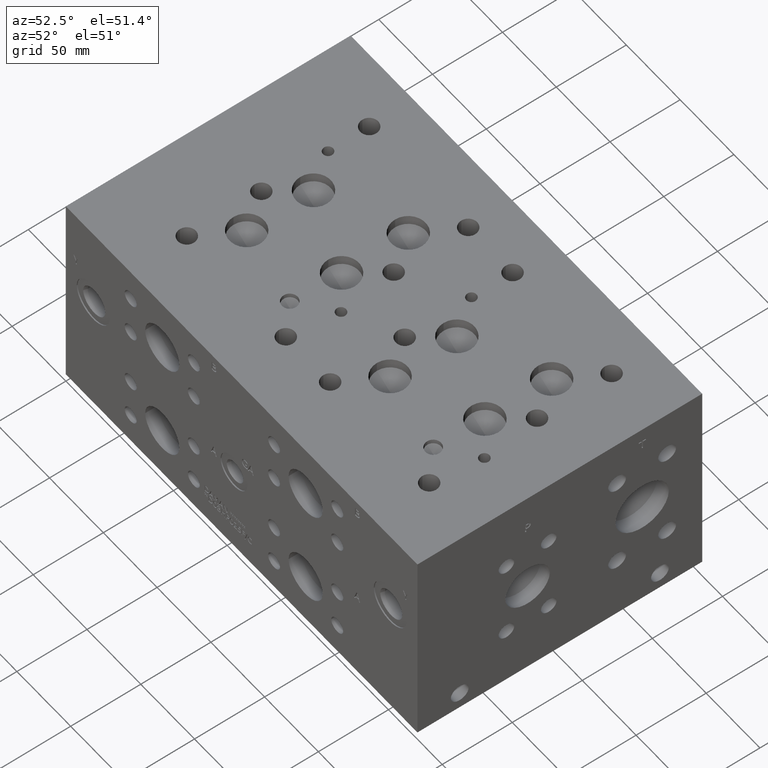
[diagram: clean part render]
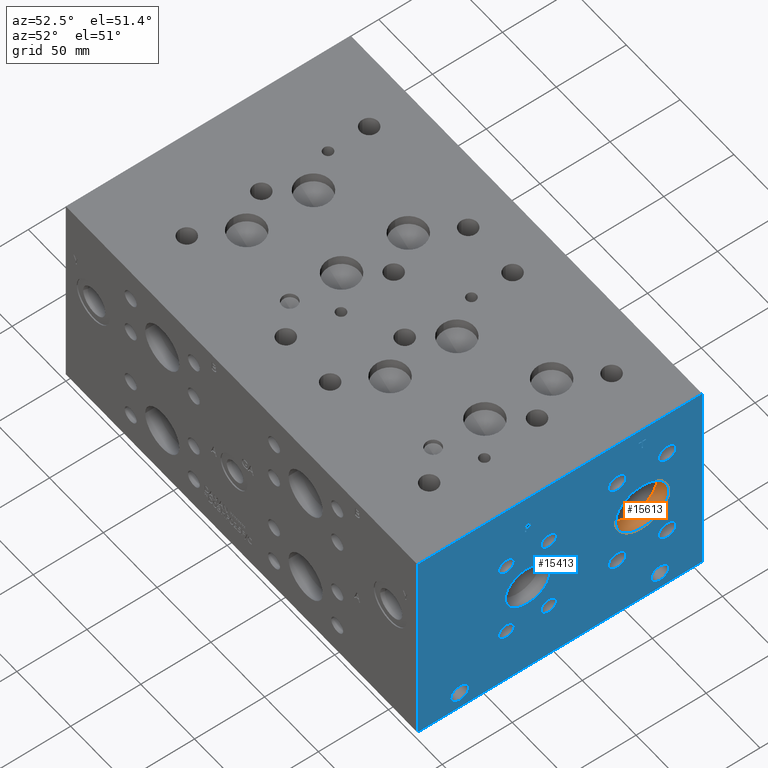
[diagram: same view with the hole feature highlighted: cylindrical wall and planar end face, labeled with their STEP entity ids]
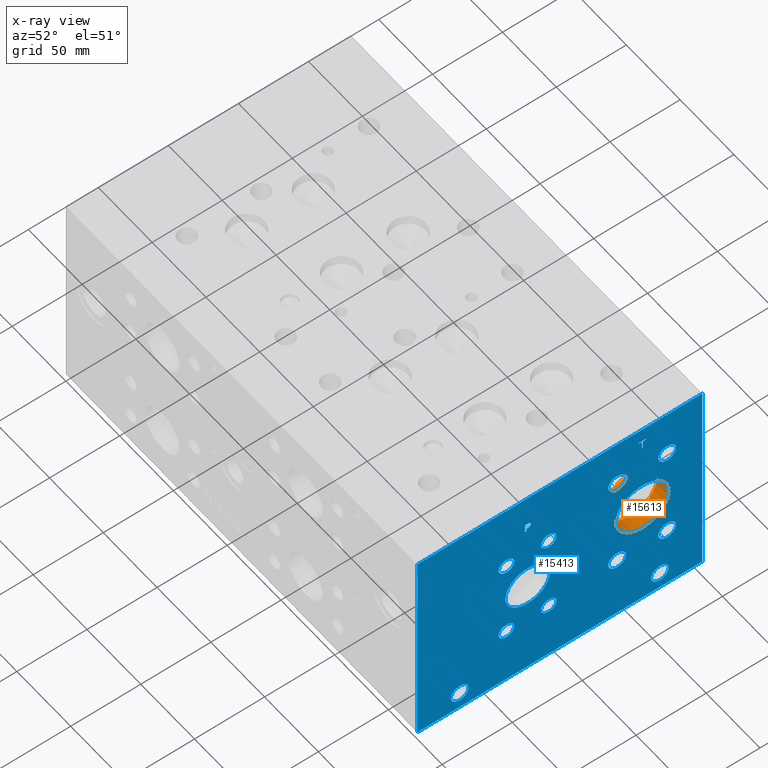
[diagram: x-ray of the same camera — body ghosted, the hole faces saturated]
A machine part, auxiliary view. The highlighted faces form one hole feature of diameter 38.1 mm: the cylindrical wall (entity #15613, orange) and its adjacent planar end face (entity #15413, blue) — they share a circular edge in the B-rep.
The next image is the same camera in x-ray (body ghosted, the hole faces saturated) — the bore reads through the body.
Wall:
#180=CYLINDRICAL_SURFACE('',#16595,19.05);
#287=CIRCLE('',#16133,19.05);
#288=CIRCLE('',#16134,19.05);
#556=CIRCLE('',#16593,19.05);
#557=CIRCLE('',#16594,19.05);
#2122=FACE_OUTER_BOUND('',#3071,.T.);
#3071=EDGE_LOOP('',(#13340,#13341,#13342,#13343,#13344,#13345));
#4482=LINE('',#26687,#5816);
#5816=VECTOR('',#19835,19.05);
#6855=VERTEX_POINT('',#25428);
#6856=VERTEX_POINT('',#25429);
#7225=VERTEX_POINT('',#26680);
#7226=VERTEX_POINT('',#26681);
#8842=EDGE_CURVE('',#6855,#6856,#287,.T.);
#8843=EDGE_CURVE('',#6856,#6855,#288,.T.);
#9339=EDGE_CURVE('',#7225,#7226,#556,.T.);
#9341=EDGE_CURVE('',#7226,#7225,#557,.T.);
#9342=EDGE_CURVE('',#6856,#7226,#4482,.T.);
#13340=ORIENTED_EDGE('',*,*,#8842,.F.);
#13341=ORIENTED_EDGE('',*,*,#8843,.F.);
#13342=ORIENTED_EDGE('',*,*,#9342,.T.);
#13343=ORIENTED_EDGE('',*,*,#9339,.F.);
#13344=ORIENTED_EDGE('',*,*,#9341,.F.);
#13345=ORIENTED_EDGE('',*,*,#9342,.F.);
#15613=ADVANCED_FACE('',(#2122),#180,.F.);
#16133=AXIS2_PLACEMENT_3D('',#25430,#18698,#18699);
#16134=AXIS2_PLACEMENT_3D('',#25431,#18700,#18701);
#16593=AXIS2_PLACEMENT_3D('',#26682,#19828,#19829);
#16594=AXIS2_PLACEMENT_3D('',#26685,#19831,#19832);
#16595=AXIS2_PLACEMENT_3D('',#26686,#19833,#19834);
#18698=DIRECTION('center_axis',(-1.,0.,0.));
#18699=DIRECTION('ref_axis',(0.,1.,0.));
#18700=DIRECTION('center_axis',(-1.,0.,0.));
#18701=DIRECTION('ref_axis',(0.,1.,0.));
#19828=DIRECTION('center_axis',(1.,0.,0.));
#19829=DIRECTION('ref_axis',(0.,1.,0.));
#19831=DIRECTION('center_axis',(1.,0.,0.));
#19832=DIRECTION('ref_axis',(0.,1.,0.));
#19833=DIRECTION('center_axis',(1.,0.,0.));
#19834=DIRECTION('ref_axis',(0.,1.,0.));
#19835=DIRECTION('',(-1.,0.,0.));
#25428=CARTESIAN_POINT('',(327.025,179.4002,82.55));
#25429=CARTESIAN_POINT('',(327.025,141.3002,82.55));
#25430=CARTESIAN_POINT('Origin',(327.025,160.3502,82.55));
#25431=CARTESIAN_POINT('Origin',(327.025,160.3502,82.55));
#26680=CARTESIAN_POINT('',(316.02648,179.4002,82.55));
#26681=CARTESIAN_POINT('',(316.02648,141.3002,82.55));
#26682=CARTESIAN_POINT('Origin',(316.02648,160.3502,82.55));
#26685=CARTESIAN_POINT('Origin',(316.02648,160.3502,82.55));
#26686=CARTESIAN_POINT('Origin',(321.52574,160.3502,82.55));
#26687=CARTESIAN_POINT('',(321.52574,141.3002,82.55));
End face:
#287=CIRCLE('',#16133,19.05);
#288=CIRCLE('',#16134,19.05);
#289=CIRCLE('',#16135,6.35);
#290=CIRCLE('',#16136,6.35);
#291=CIRCLE('',#16137,6.35);
#292=CIRCLE('',#16138,6.35);
#293=CIRCLE('',#16139,6.35);
#294=CIRCLE('',#16140,6.35);
#295=CIRCLE('',#16141,6.35);
#296=CIRCLE('',#16142,6.35);
#297=CIRCLE('',#16143,15.875);
#298=CIRCLE('',#16144,15.875);
#299=CIRCLE('',#16145,5.5626);
#300=CIRCLE('',#16146,5.5626);
#301=CIRCLE('',#16147,5.5626);
#302=CIRCLE('',#16148,5.5626);
#303=CIRCLE('',#16149,5.5626);
#304=CIRCLE('',#16150,5.5626);
#305=CIRCLE('',#16151,5.5626);
#306=CIRCLE('',#16152,5.5626);
#307=CIRCLE('',#16153,6.35);
#308=CIRCLE('',#16154,6.35);
#309=CIRCLE('',#16155,6.35);
#310=CIRCLE('',#16156,6.35);
#821=FACE_BOUND('',#2808,.T.);
#822=FACE_BOUND('',#2809,.T.);
#823=FACE_BOUND('',#2810,.T.);
#824=FACE_BOUND('',#2811,.T.);
#825=FACE_BOUND('',#2812,.T.);
#826=FACE_BOUND('',#2813,.T.);
#827=FACE_BOUND('',#2814,.T.);
#828=FACE_BOUND('',#2815,.T.);
#829=FACE_BOUND('',#2816,.T.);
#830=FACE_BOUND('',#2817,.T.);
#831=FACE_BOUND('',#2818,.T.);
#832=FACE_BOUND('',#2819,.T.);
#833=FACE_BOUND('',#2820,.T.);
#834=FACE_BOUND('',#2821,.T.);
#1242=B_SPLINE_CURVE_WITH_KNOTS('',2,(#25325,#25326,#25327,#25328),
 .UNSPECIFIED.,.F.,.F.,(3,1,3),(0.,1.,2.),.UNSPECIFIED.);
#1244=B_SPLINE_CURVE_WITH_KNOTS('',2,(#25346,#25347,#25348,#25349),
 .UNSPECIFIED.,.F.,.F.,(3,1,3),(0.,1.,2.),.UNSPECIFIED.);
#1246=B_SPLINE_CURVE_WITH_KNOTS('',2,(#25395,#25396,#25397,#25398),
 .UNSPECIFIED.,.F.,.F.,(3,1,3),(0.,1.,2.),.UNSPECIFIED.);
#1248=B_SPLINE_CURVE_WITH_KNOTS('',2,(#25413,#25414,#25415,#25416),
 .UNSPECIFIED.,.F.,.F.,(3,1,3),(0.,1.,2.),.UNSPECIFIED.);
#1922=FACE_OUTER_BOUND('',#2807,.T.);
#2807=EDGE_LOOP('',(#12322,#12323,#12324,#12325));
#2808=EDGE_LOOP('',(#12326,#12327));
#2809=EDGE_LOOP('',(#12328,#12329));
#2810=EDGE_LOOP('',(#12330,#12331));
#2811=EDGE_LOOP('',(#12332,#12333));
#2812=EDGE_LOOP('',(#12334,#12335));
#2813=EDGE_LOOP('',(#12336,#12337));
#2814=EDGE_LOOP('',(#12338,#12339));
#2815=EDGE_LOOP('',(#12340,#12341));
#2816=EDGE_LOOP('',(#12342,#12343));
#2817=EDGE_LOOP('',(#12344,#12345));
#2818=EDGE_LOOP('',(#12346,#12347));
#2819=EDGE_LOOP('',(#12348,#12349));
#2820=EDGE_LOOP('',(#12350,#12351,#12352,#12353,#12354,#12355,#12356,#12357));
#2821=EDGE_LOOP('',(#12358,#12359,#12360,#12361,#12362,#12363,#12364,#12365,
#12366));
#3580=LINE('',#22937,#4914);
#4252=LINE('',#25358,#5586);
#4255=LINE('',#25364,#5589);
#4258=LINE('',#25370,#5592);
#4261=LINE('',#25376,#5595);
#4264=LINE('',#25382,#5598);
#4268=LINE('',#25424,#5602);
#4269=LINE('',#25426,#5603);
#4270=LINE('',#25427,#5604);
#4271=LINE('',#25478,#5605);
#4272=LINE('',#25480,#5606);
#4273=LINE('',#25482,#5607);
#4274=LINE('',#25484,#5608);
#4275=LINE('',#25486,#5609);
#4276=LINE('',#25488,#5610);
#4277=LINE('',#25490,#5611);
#4278=LINE('',#25491,#5612);
#4914=VECTOR('',#17429,10.);
#5586=VECTOR('',#18667,10.);
#5589=VECTOR('',#18672,10.);
#5592=VECTOR('',#18677,10.);
#5595=VECTOR('',#18682,10.);
#5598=VECTOR('',#18687,10.);
#5602=VECTOR('',#18695,10.);
#5603=VECTOR('',#18696,10.);
#5604=VECTOR('',#18697,10.);
#5605=VECTOR('',#18746,10.);
#5606=VECTOR('',#18747,10.);
#5607=VECTOR('',#18748,10.);
#5608=VECTOR('',#18749,10.);
#5609=VECTOR('',#18750,10.);
#5610=VECTOR('',#18751,10.);
#5611=VECTOR('',#18752,10.);
#5612=VECTOR('',#18753,10.);
#6270=VERTEX_POINT('',#22934);
#6271=VERTEX_POINT('',#22936);
#6835=VERTEX_POINT('',#25323);
#6836=VERTEX_POINT('',#25324);
#6839=VERTEX_POINT('',#25345);
#6841=VERTEX_POINT('',#25357);
#6843=VERTEX_POINT('',#25363);
#6845=VERTEX_POINT('',#25369);
#6847=VERTEX_POINT('',#25375);
#6849=VERTEX_POINT('',#25381);
#6851=VERTEX_POINT('',#25394);
#6853=VERTEX_POINT('',#25423);
#6854=VERTEX_POINT('',#25425);
#6855=VERTEX_POINT('',#25428);
#6856=VERTEX_POINT('',#25429);
#6857=VERTEX_POINT('',#25432);
#6858=VERTEX_POINT('',#25433);
#6859=VERTEX_POINT('',#25436);
#6860=VERTEX_POINT('',#25437);
#6861=VERTEX_POINT('',#25440);
#6862=VERTEX_POINT('',#25441);
#6863=VERTEX_POINT('',#25444);
#6864=VERTEX_POINT('',#25445);
#6865=VERTEX_POINT('',#25448);
#6866=VERTEX_POINT('',#25449);
#6867=VERTEX_POINT('',#25452);
#6868=VERTEX_POINT('',#25453);
#6869=VERTEX_POINT('',#25456);
#6870=VERTEX_POINT('',#25457);
#6871=VERTEX_POINT('',#25460);
#6872=VERTEX_POINT('',#25461);
#6873=VERTEX_POINT('',#25464);
#6874=VERTEX_POINT('',#25465);
#6875=VERTEX_POINT('',#25468);
#6876=VERTEX_POINT('',#25469);
#6877=VERTEX_POINT('',#25472);
#6878=VERTEX_POINT('',#25473);
#6879=VERTEX_POINT('',#25476);
#6880=VERTEX_POINT('',#25477);
#6881=VERTEX_POINT('',#25479);
#6882=VERTEX_POINT('',#25481);
#6883=VERTEX_POINT('',#25483);
#6884=VERTEX_POINT('',#25485);
#6885=VERTEX_POINT('',#25487);
#6886=VERTEX_POINT('',#25489);
#7989=EDGE_CURVE('',#6270,#6271,#3580,.T.);
#8812=EDGE_CURVE('',#6835,#6836,#1242,.T.);
#8816=EDGE_CURVE('',#6839,#6835,#1244,.T.);
#8819=EDGE_CURVE('',#6841,#6839,#4252,.T.);
#8822=EDGE_CURVE('',#6843,#6841,#4255,.T.);
#8825=EDGE_CURVE('',#6845,#6843,#4258,.T.);
#8828=EDGE_CURVE('',#6847,#6845,#4261,.T.);
#8831=EDGE_CURVE('',#6849,#6847,#4264,.T.);
#8834=EDGE_CURVE('',#6851,#6849,#1246,.T.);
#8837=EDGE_CURVE('',#6836,#6851,#1248,.T.);
#8839=EDGE_CURVE('',#6270,#6853,#4268,.T.);
#8840=EDGE_CURVE('',#6853,#6854,#4269,.T.);
#8841=EDGE_CURVE('',#6271,#6854,#4270,.T.);
#8842=EDGE_CURVE('',#6855,#6856,#287,.T.);
#8843=EDGE_CURVE('',#6856,#6855,#288,.T.);
#8844=EDGE_CURVE('',#6857,#6858,#289,.T.);
#8845=EDGE_CURVE('',#6858,#6857,#290,.T.);
#8846=EDGE_CURVE('',#6859,#6860,#291,.T.);
#8847=EDGE_CURVE('',#6860,#6859,#292,.T.);
#8848=EDGE_CURVE('',#6861,#6862,#293,.T.);
#8849=EDGE_CURVE('',#6862,#6861,#294,.T.);
#8850=EDGE_CURVE('',#6863,#6864,#295,.T.);
#8851=EDGE_CURVE('',#6864,#6863,#296,.T.);
#8852=EDGE_CURVE('',#6865,#6866,#297,.T.);
#8853=EDGE_CURVE('',#6866,#6865,#298,.T.);
#8854=EDGE_CURVE('',#6867,#6868,#299,.T.);
#8855=EDGE_CURVE('',#6868,#6867,#300,.T.);
#8856=EDGE_CURVE('',#6869,#6870,#301,.T.);
#8857=EDGE_CURVE('',#6870,#6869,#302,.T.);
#8858=EDGE_CURVE('',#6871,#6872,#303,.T.);
#8859=EDGE_CURVE('',#6872,#6871,#304,.T.);
#8860=EDGE_CURVE('',#6873,#6874,#305,.T.);
#8861=EDGE_CURVE('',#6874,#6873,#306,.T.);
#8862=EDGE_CURVE('',#6875,#6876,#307,.T.);
#8863=EDGE_CURVE('',#6876,#6875,#308,.T.);
#8864=EDGE_CURVE('',#6877,#6878,#309,.T.);
#8865=EDGE_CURVE('',#6878,#6877,#310,.T.);
#8866=EDGE_CURVE('',#6879,#6880,#4271,.T.);
#8867=EDGE_CURVE('',#6880,#6881,#4272,.T.);
#8868=EDGE_CURVE('',#6881,#6882,#4273,.T.);
#8869=EDGE_CURVE('',#6882,#6883,#4274,.T.);
#8870=EDGE_CURVE('',#6883,#6884,#4275,.T.);
#8871=EDGE_CURVE('',#6884,#6885,#4276,.T.);
#8872=EDGE_CURVE('',#6885,#6886,#4277,.T.);
#8873=EDGE_CURVE('',#6886,#6879,#4278,.T.);
#12322=ORIENTED_EDGE('',*,*,#8839,.T.);
#12323=ORIENTED_EDGE('',*,*,#8840,.T.);
#12324=ORIENTED_EDGE('',*,*,#8841,.F.);
#12325=ORIENTED_EDGE('',*,*,#7989,.F.);
#12326=ORIENTED_EDGE('',*,*,#8842,.T.);
#12327=ORIENTED_EDGE('',*,*,#8843,.T.);
#12328=ORIENTED_EDGE('',*,*,#8844,.T.);
#12329=ORIENTED_EDGE('',*,*,#8845,.T.);
#12330=ORIENTED_EDGE('',*,*,#8846,.T.);
#12331=ORIENTED_EDGE('',*,*,#8847,.T.);
#12332=ORIENTED_EDGE('',*,*,#8848,.T.);
#12333=ORIENTED_EDGE('',*,*,#8849,.T.);
#12334=ORIENTED_EDGE('',*,*,#8850,.T.);
#12335=ORIENTED_EDGE('',*,*,#8851,.T.);
#12336=ORIENTED_EDGE('',*,*,#8852,.T.);
#12337=ORIENTED_EDGE('',*,*,#8853,.T.);
#12338=ORIENTED_EDGE('',*,*,#8854,.T.);
#12339=ORIENTED_EDGE('',*,*,#8855,.T.);
#12340=ORIENTED_EDGE('',*,*,#8856,.T.);
#12341=ORIENTED_EDGE('',*,*,#8857,.T.);
#12342=ORIENTED_EDGE('',*,*,#8858,.T.);
#12343=ORIENTED_EDGE('',*,*,#8859,.T.);
#12344=ORIENTED_EDGE('',*,*,#8860,.T.);
#12345=ORIENTED_EDGE('',*,*,#8861,.T.);
#12346=ORIENTED_EDGE('',*,*,#8862,.T.);
#12347=ORIENTED_EDGE('',*,*,#8863,.T.);
#12348=ORIENTED_EDGE('',*,*,#8864,.T.);
#12349=ORIENTED_EDGE('',*,*,#8865,.T.);
#12350=ORIENTED_EDGE('',*,*,#8866,.T.);
#12351=ORIENTED_EDGE('',*,*,#8867,.T.);
#12352=ORIENTED_EDGE('',*,*,#8868,.T.);
#12353=ORIENTED_EDGE('',*,*,#8869,.T.);
#12354=ORIENTED_EDGE('',*,*,#8870,.T.);
#12355=ORIENTED_EDGE('',*,*,#8871,.T.);
#12356=ORIENTED_EDGE('',*,*,#8872,.T.);
#12357=ORIENTED_EDGE('',*,*,#8873,.T.);
#12358=ORIENTED_EDGE('',*,*,#8812,.T.);
#12359=ORIENTED_EDGE('',*,*,#8837,.T.);
#12360=ORIENTED_EDGE('',*,*,#8834,.T.);
#12361=ORIENTED_EDGE('',*,*,#8831,.T.);
#12362=ORIENTED_EDGE('',*,*,#8828,.T.);
#12363=ORIENTED_EDGE('',*,*,#8825,.T.);
#12364=ORIENTED_EDGE('',*,*,#8822,.T.);
#12365=ORIENTED_EDGE('',*,*,#8819,.T.);
#12366=ORIENTED_EDGE('',*,*,#8816,.T.);
#14323=PLANE('',#16132);
#15413=ADVANCED_FACE('',(#1922,#821,#822,#823,#824,#825,#826,#827,#828,
#829,#830,#831,#832,#833,#834),#14323,.T.);
#16132=AXIS2_PLACEMENT_3D('',#25422,#18693,#18694);
#16133=AXIS2_PLACEMENT_3D('',#25430,#18698,#18699);
#16134=AXIS2_PLACEMENT_3D('',#25431,#18700,#18701);
#16135=AXIS2_PLACEMENT_3D('',#25434,#18702,#18703);
#16136=AXIS2_PLACEMENT_3D('',#25435,#18704,#18705);
#16137=AXIS2_PLACEMENT_3D('',#25438,#18706,#18707);
#16138=AXIS2_PLACEMENT_3D('',#25439,#18708,#18709);
#16139=AXIS2_PLACEMENT_3D('',#25442,#18710,#18711);
#16140=AXIS2_PLACEMENT_3D('',#25443,#18712,#18713);
#16141=AXIS2_PLACEMENT_3D('',#25446,#18714,#18715);
#16142=AXIS2_PLACEMENT_3D('',#25447,#18716,#18717);
#16143=AXIS2_PLACEMENT_3D('',#25450,#18718,#18719);
#16144=AXIS2_PLACEMENT_3D('',#25451,#18720,#18721);
#16145=AXIS2_PLACEMENT_3D('',#25454,#18722,#18723);
#16146=AXIS2_PLACEMENT_3D('',#25455,#18724,#18725);
#16147=AXIS2_PLACEMENT_3D('',#25458,#18726,#18727);
#16148=AXIS2_PLACEMENT_3D('',#25459,#18728,#18729);
#16149=AXIS2_PLACEMENT_3D('',#25462,#18730,#18731);
#16150=AXIS2_PLACEMENT_3D('',#25463,#18732,#18733);
#16151=AXIS2_PLACEMENT_3D('',#25466,#18734,#18735);
#16152=AXIS2_PLACEMENT_3D('',#25467,#18736,#18737);
#16153=AXIS2_PLACEMENT_3D('',#25470,#18738,#18739);
#16154=AXIS2_PLACEMENT_3D('',#25471,#18740,#18741);
#16155=AXIS2_PLACEMENT_3D('',#25474,#18742,#18743);
#16156=AXIS2_PLACEMENT_3D('',#25475,#18744,#18745);
#17429=DIRECTION('',(0.,0.,1.));
#18667=DIRECTION('',(0.,1.,0.));
#18672=DIRECTION('',(0.,0.,1.));
#18677=DIRECTION('',(0.,-1.,0.));
#18682=DIRECTION('',(0.,0.,-1.));
#18687=DIRECTION('',(0.,-1.,0.));
#18693=DIRECTION('center_axis',(1.,0.,0.));
#18694=DIRECTION('ref_axis',(0.,1.,0.));
#18695=DIRECTION('',(0.,1.,0.));
#18696=DIRECTION('',(0.,0.,1.));
#18697=DIRECTION('',(0.,1.,0.));
#18698=DIRECTION('center_axis',(-1.,0.,0.));
#18699=DIRECTION('ref_axis',(0.,1.,0.));
#18700=DIRECTION('center_axis',(-1.,0.,0.));
#18701=DIRECTION('ref_axis',(0.,1.,0.));
#18702=DIRECTION('center_axis',(-1.,0.,0.));
#18703=DIRECTION('ref_axis',(0.,1.,0.));
#18704=DIRECTION('center_axis',(-1.,0.,0.));
#18705=DIRECTION('ref_axis',(0.,1.,0.));
#18706=DIRECTION('center_axis',(-1.,0.,0.));
#18707=DIRECTION('ref_axis',(0.,1.,0.));
#18708=DIRECTION('center_axis',(-1.,0.,0.));
#18709=DIRECTION('ref_axis',(0.,1.,0.));
#18710=DIRECTION('center_axis',(-1.,0.,0.));
#18711=DIRECTION('ref_axis',(0.,1.,0.));
#18712=DIRECTION('center_axis',(-1.,0.,0.));
#18713=DIRECTION('ref_axis',(0.,1.,0.));
#18714=DIRECTION('center_axis',(-1.,0.,0.));
#18715=DIRECTION('ref_axis',(0.,1.,0.));
#18716=DIRECTION('center_axis',(-1.,0.,0.));
#18717=DIRECTION('ref_axis',(0.,1.,0.));
#18718=DIRECTION('center_axis',(-1.,0.,0.));
#18719=DIRECTION('ref_axis',(0.,1.,0.));
#18720=DIRECTION('center_axis',(-1.,0.,0.));
#18721=DIRECTION('ref_axis',(0.,1.,0.));
#18722=DIRECTION('center_axis',(-1.,0.,0.));
#18723=DIRECTION('ref_axis',(0.,1.,0.));
#18724=DIRECTION('center_axis',(-1.,0.,0.));
#18725=DIRECTION('ref_axis',(0.,1.,0.));
#18726=DIRECTION('center_axis',(-1.,0.,0.));
#18727=DIRECTION('ref_axis',(0.,1.,0.));
#18728=DIRECTION('center_axis',(-1.,0.,0.));
#18729=DIRECTION('ref_axis',(0.,1.,0.));
#18730=DIRECTION('center_axis',(-1.,0.,0.));
#18731=DIRECTION('ref_axis',(0.,1.,0.));
#18732=DIRECTION('center_axis',(-1.,0.,0.));
#18733=DIRECTION('ref_axis',(0.,1.,0.));
#18734=DIRECTION('center_axis',(-1.,0.,0.));
#18735=DIRECTION('ref_axis',(0.,1.,0.));
#18736=DIRECTION('center_axis',(-1.,0.,0.));
#18737=DIRECTION('ref_axis',(0.,1.,0.));
#18738=DIRECTION('center_axis',(-1.,0.,0.));
#18739=DIRECTION('ref_axis',(0.,1.,0.));
#18740=DIRECTION('center_axis',(-1.,0.,0.));
#18741=DIRECTION('ref_axis',(0.,1.,0.));
#18742=DIRECTION('center_axis',(-1.,0.,0.));
#18743=DIRECTION('ref_axis',(0.,1.,0.));
#18744=DIRECTION('center_axis',(-1.,0.,0.));
#18745=DIRECTION('ref_axis',(0.,1.,0.));
#18746=DIRECTION('',(0.,-1.,0.));
#18747=DIRECTION('',(0.,0.,1.));
#18748=DIRECTION('',(0.,-1.,0.));
#18749=DIRECTION('',(0.,0.,1.));
#18750=DIRECTION('',(0.,1.,0.));
#18751=DIRECTION('',(0.,0.,-1.));
#18752=DIRECTION('',(0.,-1.,0.));
#18753=DIRECTION('',(0.,0.,-1.));
#22934=CARTESIAN_POINT('',(327.025,0.,0.));
#22936=CARTESIAN_POINT('',(327.025,0.,152.4));
#22937=CARTESIAN_POINT('',(327.025,0.,0.));
#25323=CARTESIAN_POINT('',(327.025,80.1005672023594,128.991368143971));
#25324=CARTESIAN_POINT('',(327.025,80.857009654532,127.473337372604));
#25325=CARTESIAN_POINT('Ctrl Pts',(327.025,80.1005672023594,128.991368143971));
#25326=CARTESIAN_POINT('Ctrl Pts',(327.025,80.4556320268486,128.749512393956));
#25327=CARTESIAN_POINT('Ctrl Pts',(327.025,80.857009654532,128.003361675827));
#25328=CARTESIAN_POINT('Ctrl Pts',(327.025,80.857009654532,127.473337372604));
#25345=CARTESIAN_POINT('',(327.025,78.4384521543883,129.387599904633));
#25346=CARTESIAN_POINT('Ctrl Pts',(327.025,78.4384521543883,129.387599904633));
#25347=CARTESIAN_POINT('Ctrl Pts',(327.025,79.0044975267624,129.387599904633));
#25348=CARTESIAN_POINT('Ctrl Pts',(327.025,79.796961048086,129.202348691856));
#25349=CARTESIAN_POINT('Ctrl Pts',(327.025,80.1005672023594,128.991368143971));
#25357=CARTESIAN_POINT('',(327.025,76.8432333776978,129.387599904633));
#25358=CARTESIAN_POINT('',(327.025,38.4216166888489,129.387599904633));
#25363=CARTESIAN_POINT('',(327.025,76.8432333776978,123.0376));
#25364=CARTESIAN_POINT('',(327.025,76.8432333776978,61.5188));
#25369=CARTESIAN_POINT('',(327.025,77.6871555692373,123.0376));
#25370=CARTESIAN_POINT('',(327.025,38.8435777846186,123.0376));
#25375=CARTESIAN_POINT('',(327.025,77.6871555692373,125.404698829928));
#25376=CARTESIAN_POINT('',(327.025,77.6871555692373,62.7023494149639));
#25381=CARTESIAN_POINT('',(327.025,78.4024310852372,125.404698829928));
#25382=CARTESIAN_POINT('',(327.025,39.2012155426186,125.404698829928));
#25394=CARTESIAN_POINT('',(327.025,80.3012560162011,126.06336980869));
#25395=CARTESIAN_POINT('Ctrl Pts',(327.025,80.3012560162011,126.06336980869));
#25396=CARTESIAN_POINT('Ctrl Pts',(327.025,79.9719205268198,125.739180186331));
#25397=CARTESIAN_POINT('Ctrl Pts',(327.025,79.0816855320861,125.404698829928));
#25398=CARTESIAN_POINT('Ctrl Pts',(327.025,78.4024310852372,125.404698829928));
#25413=CARTESIAN_POINT('Ctrl Pts',(327.025,80.857009654532,127.473337372604));
#25414=CARTESIAN_POINT('Ctrl Pts',(327.025,80.857009654532,127.061668010877));
#25415=CARTESIAN_POINT('Ctrl Pts',(327.025,80.5636952343018,126.32066315977));
#25416=CARTESIAN_POINT('Ctrl Pts',(327.025,80.3012560162011,126.06336980869));
#25422=CARTESIAN_POINT('Origin',(327.025,0.,0.));
#25423=CARTESIAN_POINT('',(327.025,203.2,0.));
#25424=CARTESIAN_POINT('',(327.025,0.,0.));
#25425=CARTESIAN_POINT('',(327.025,203.2,152.4));
#25426=CARTESIAN_POINT('',(327.025,203.2,0.));
#25427=CARTESIAN_POINT('',(327.025,0.,152.4));
#25428=CARTESIAN_POINT('',(327.025,179.4002,82.55));
#25429=CARTESIAN_POINT('',(327.025,141.3002,82.55));
#25430=CARTESIAN_POINT('Origin',(327.025,160.3502,82.55));
#25431=CARTESIAN_POINT('Origin',(327.025,160.3502,82.55));
#25432=CARTESIAN_POINT('',(327.025,148.844,117.475));
#25433=CARTESIAN_POINT('',(327.025,136.144,117.475));
#25434=CARTESIAN_POINT('Origin',(327.025,142.494,117.475));
#25435=CARTESIAN_POINT('Origin',(327.025,142.494,117.475));
#25436=CARTESIAN_POINT('',(327.025,184.5564,47.625));
#25437=CARTESIAN_POINT('',(327.025,171.8564,47.625));
#25438=CARTESIAN_POINT('Origin',(327.025,178.2064,47.625));
#25439=CARTESIAN_POINT('Origin',(327.025,178.2064,47.625));
#25440=CARTESIAN_POINT('',(327.025,184.5564,117.475));
#25441=CARTESIAN_POINT('',(327.025,171.8564,117.475));
#25442=CARTESIAN_POINT('Origin',(327.025,178.2064,117.475));
#25443=CARTESIAN_POINT('Origin',(327.025,178.2064,117.475));
#25444=CARTESIAN_POINT('',(327.025,148.844,47.625));
#25445=CARTESIAN_POINT('',(327.025,136.144,47.625));
#25446=CARTESIAN_POINT('Origin',(327.025,142.494,47.625));
#25447=CARTESIAN_POINT('Origin',(327.025,142.494,47.625));
#25448=CARTESIAN_POINT('',(327.025,94.4626,73.025));
#25449=CARTESIAN_POINT('',(327.025,62.7126,73.025));
#25450=CARTESIAN_POINT('Origin',(327.025,78.5876,73.025));
#25451=CARTESIAN_POINT('Origin',(327.025,78.5876,73.025));
#25452=CARTESIAN_POINT('',(327.025,69.0626,43.6626));
#25453=CARTESIAN_POINT('',(327.025,57.9374,43.6626));
#25454=CARTESIAN_POINT('Origin',(327.025,63.5,43.6626));
#25455=CARTESIAN_POINT('Origin',(327.025,63.5,43.6626));
#25456=CARTESIAN_POINT('',(327.025,99.2378,102.3874));
#25457=CARTESIAN_POINT('',(327.025,88.1126,102.3874));
#25458=CARTESIAN_POINT('Origin',(327.025,93.6752,102.3874));
#25459=CARTESIAN_POINT('Origin',(327.025,93.6752,102.3874));
#25460=CARTESIAN_POINT('',(327.025,69.0626,102.3874));
#25461=CARTESIAN_POINT('',(327.025,57.9374,102.3874));
#25462=CARTESIAN_POINT('Origin',(327.025,63.5,102.3874));
#25463=CARTESIAN_POINT('Origin',(327.025,63.5,102.3874));
#25464=CARTESIAN_POINT('',(327.025,99.2378,43.6626));
#25465=CARTESIAN_POINT('',(327.025,88.1126,43.6626));
#25466=CARTESIAN_POINT('Origin',(327.025,93.6752,43.6626));
#25467=CARTESIAN_POINT('Origin',(327.025,93.6752,43.6626));
#25468=CARTESIAN_POINT('',(327.025,179.3748,12.7));
#25469=CARTESIAN_POINT('',(327.025,166.6748,12.7));
#25470=CARTESIAN_POINT('Origin',(327.025,173.0248,12.7));
#25471=CARTESIAN_POINT('Origin',(327.025,173.0248,12.7));
#25472=CARTESIAN_POINT('',(327.025,36.5252,12.7));
#25473=CARTESIAN_POINT('',(327.025,23.8252,12.7));
#25474=CARTESIAN_POINT('Origin',(327.025,30.1752,12.7));
#25475=CARTESIAN_POINT('Origin',(327.025,30.1752,12.7));
#25476=CARTESIAN_POINT('',(327.025,160.957165271453,135.7376));
#25477=CARTESIAN_POINT('',(327.025,160.113243079913,135.7376));
#25478=CARTESIAN_POINT('',(327.025,80.4785826357265,135.7376));
#25479=CARTESIAN_POINT('',(327.025,160.113243079913,141.336303319482));
#25480=CARTESIAN_POINT('',(327.025,160.113243079913,67.8688));
#25481=CARTESIAN_POINT('',(327.025,157.982854132978,141.336303319482));
#25482=CARTESIAN_POINT('',(327.025,80.0566215399567,141.336303319482));
#25483=CARTESIAN_POINT('',(327.025,157.982854132978,142.087599904633));
#25484=CARTESIAN_POINT('',(327.025,157.982854132978,70.6681516597408));
#25485=CARTESIAN_POINT('',(327.025,163.087554218388,142.087599904633));
#25486=CARTESIAN_POINT('',(327.025,78.9914270664892,142.087599904633));
#25487=CARTESIAN_POINT('',(327.025,163.087554218388,141.336303319482));
#25488=CARTESIAN_POINT('',(327.025,163.087554218388,71.0437999523163));
#25489=CARTESIAN_POINT('',(327.025,160.957165271453,141.336303319482));
#25490=CARTESIAN_POINT('',(327.025,81.543777109194,141.336303319482));
#25491=CARTESIAN_POINT('',(327.025,160.957165271453,70.6681516597408));